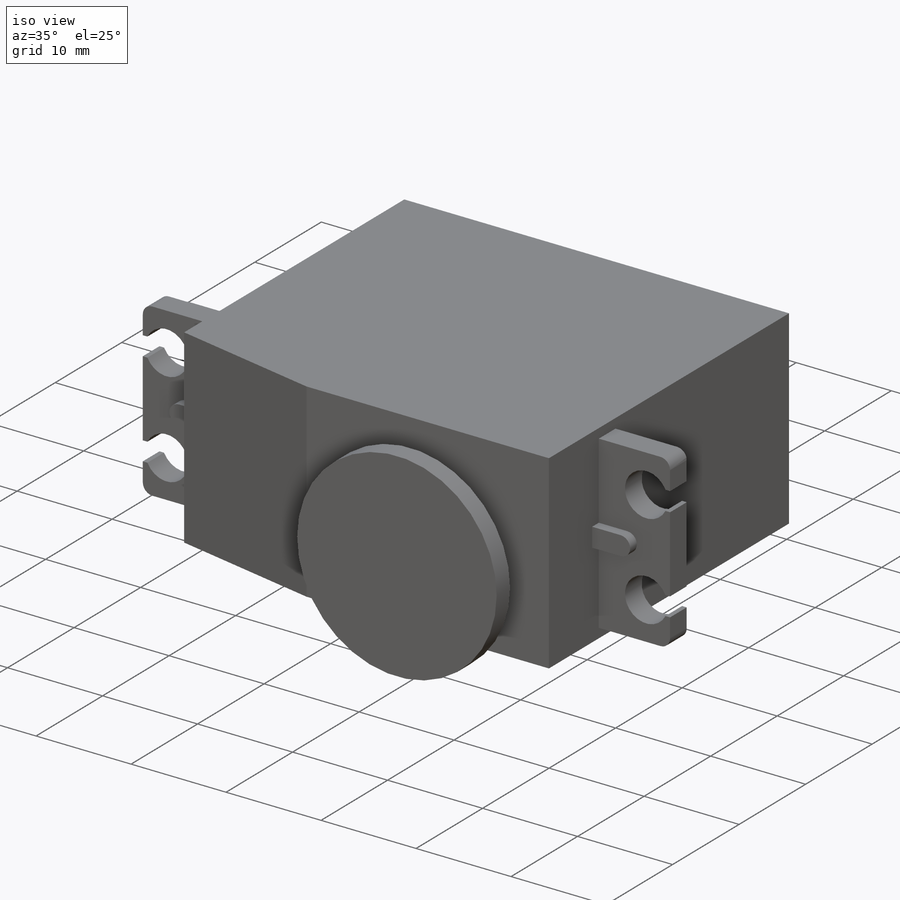
[diagram: iso view]
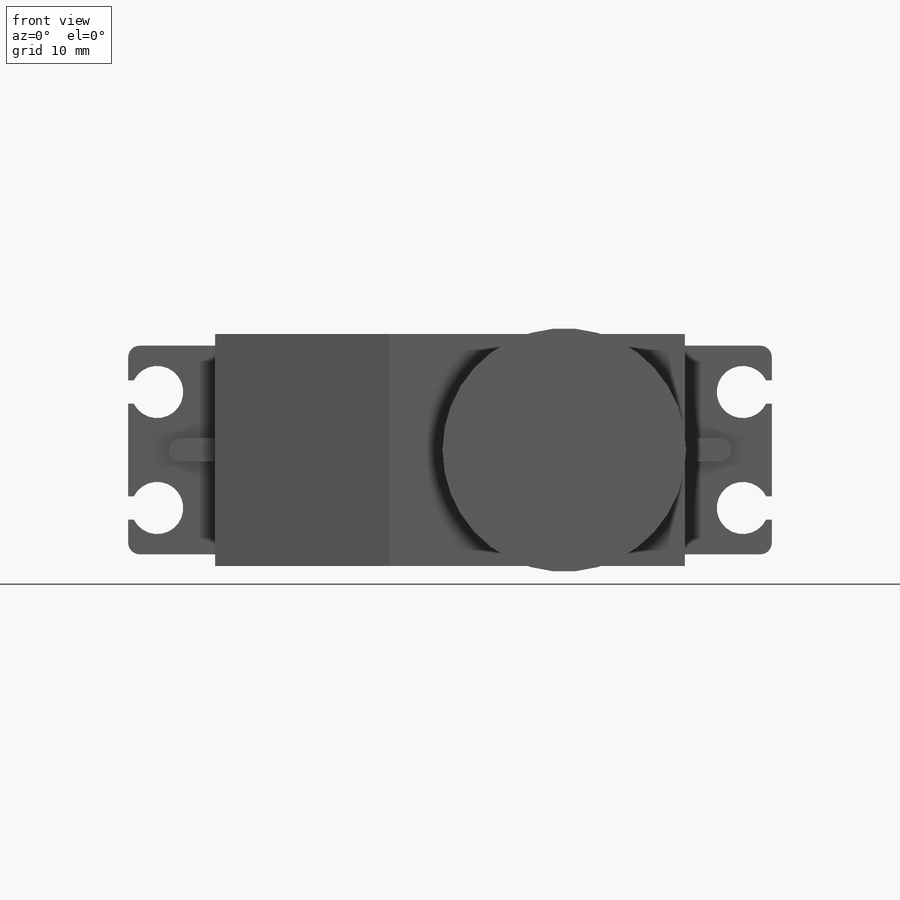
[diagram: front view]
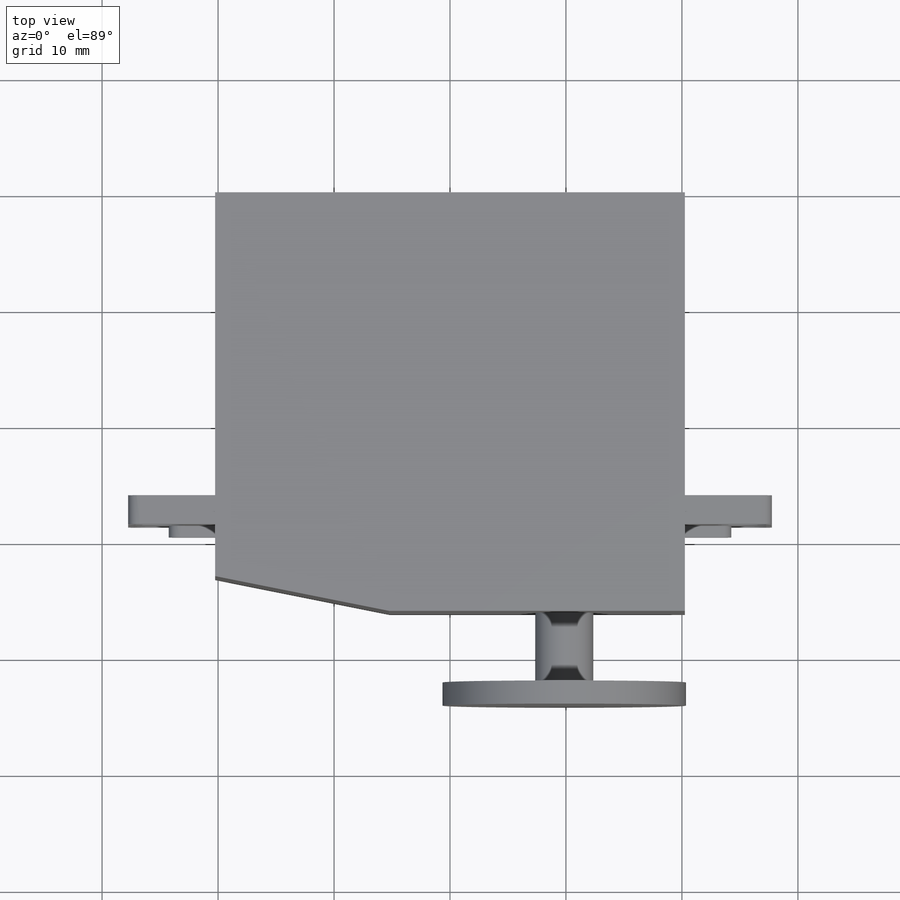
[diagram: top view]
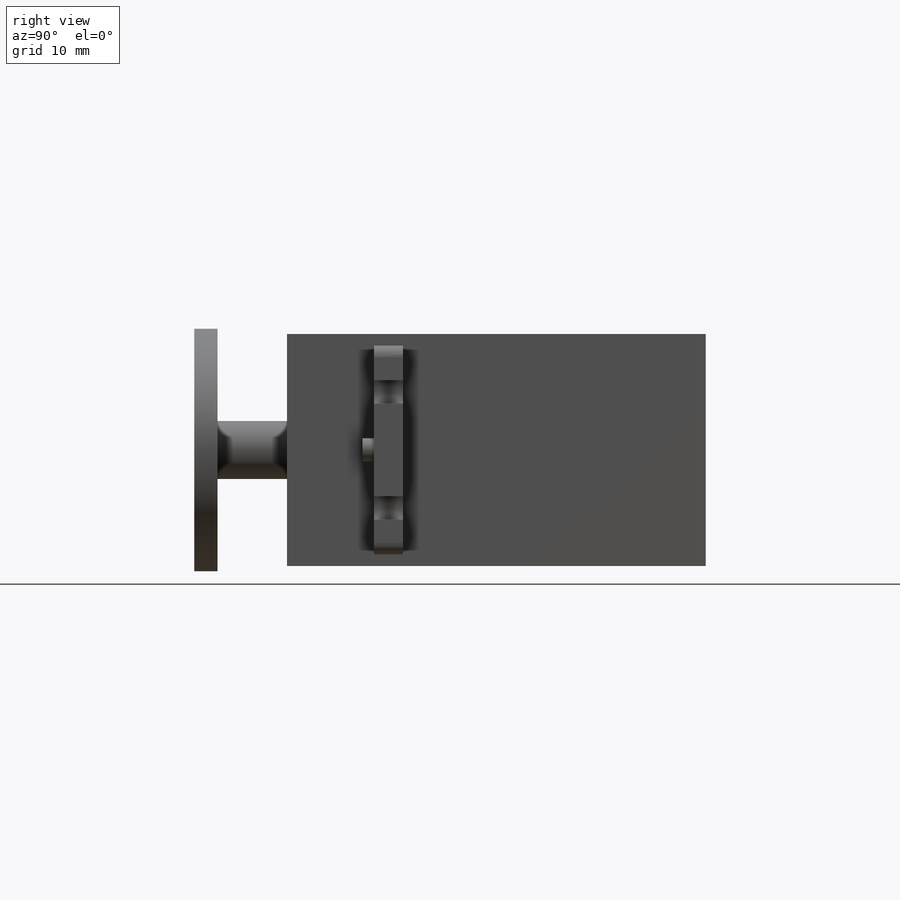
[diagram: right view]
SOLIDWORKS PART (.sldprt)
format: sldprt  version: not decoded by parser v0  size: 229,376 bytes
history: native  units: mm
features: sketch x5, extrude x5, material x1, plane x1, fillet x1, mirror x1, chamfer x1 (+11 scaffold rows collapsed)
feature tree (26):
  scaffold x11  (default folders/planes/origin — collapsed)
  material  "Material <not specified>"
  sketch  "Sketch1"  dims[c1.D1=~52.498226mm c1.D2=~39.771383mm c2.D1=20.0mm c2.D2=40.5mm c3.D1=20.0mm c3.D2=40.5mm]
  extrude  "Boss-Extrude1"  Depth=36.1mm
  plane  "Plane1"  Offset=26.1mm
  sketch  "Sketch2"  dims[c1.D4=4.5mm c1.D7=4.5mm c1.D1=~17.865873mm c1.D2=~6.05243mm c2.D1=18.0mm c2.D2=1.0mm c2.D3=7.5mm c2.D5=10.0mm c2.D6=5.0mm c2.D7=25.25mm c2.D8=~1.661142mm c2.D9=~0.413041mm c3.D8=2.0mm c3.D9=1.0mm c3.D10=~1.883133mm c3.D11=~0.562174mm c4.D10=2.0mm c4.D11=1.0mm]
  extrude  "Boss-Extrude2"  Depth=2.5mm
  sketch  "Sketch3"  dims[D1=~5.138875mm D2=3.0mm D3=1.0mm D4=2.0mm]
  extrude  "Boss-Extrude3"  Depth=1mm
  fillet  "Fillet1"  Radius=1mm
  mirror  "Mirror1"
  chamfer  "Chamfer1"  Distance=3mm
  sketch  "Sketch4"  dims[c1.D1=5.0mm c1.D2=5.0mm c1.D3=5.0mm c2.D2=30.1mm c2.D3=10.4mm]
  extrude  "Boss-Extrude4"  Depth=6mm
  sketch  "Sketch5"  dims[D1=21.0mm]
  extrude  "Boss-Extrude5"  Depth=2mm
decode coverage: 12 of 13 modeling features carry decoded parameters
note: ~ marks probable driven/reference dimensions
note: suppression state not decoded; provenance and decode notes live in map.json
